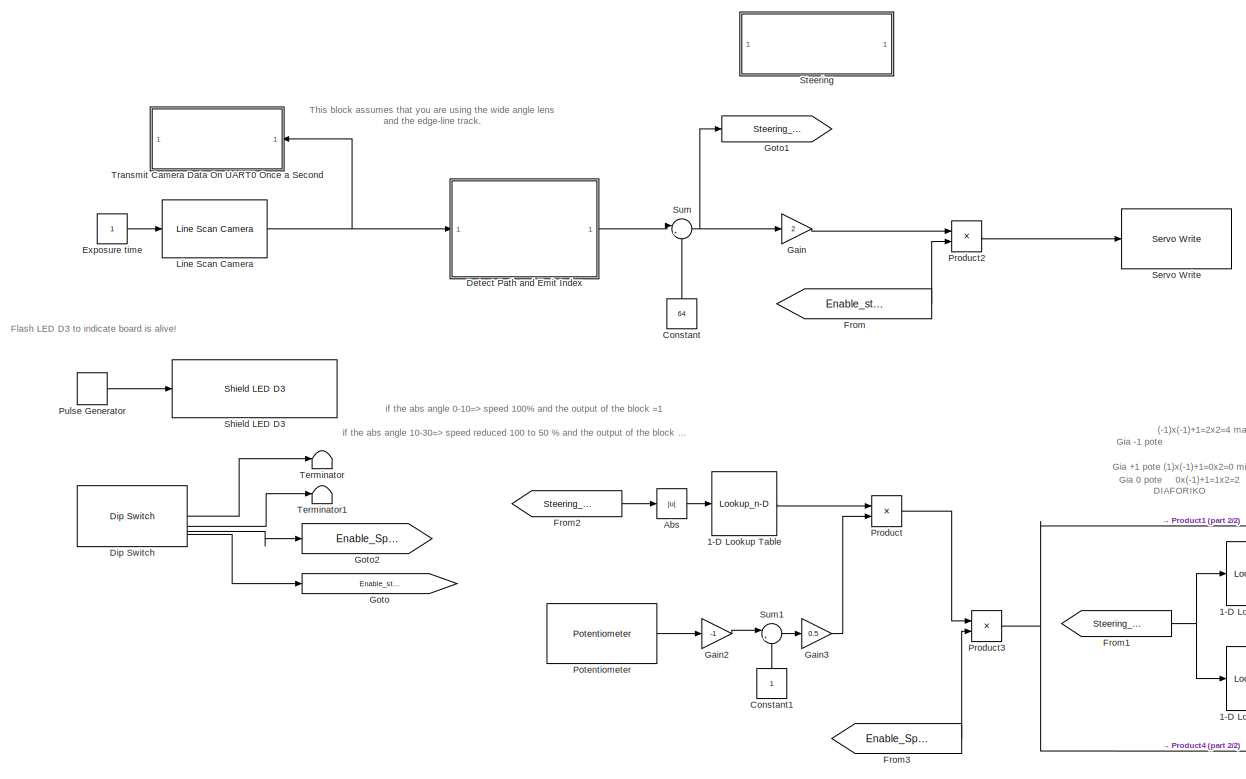
[diagram: root canvas - part 1/2, center side, full height]
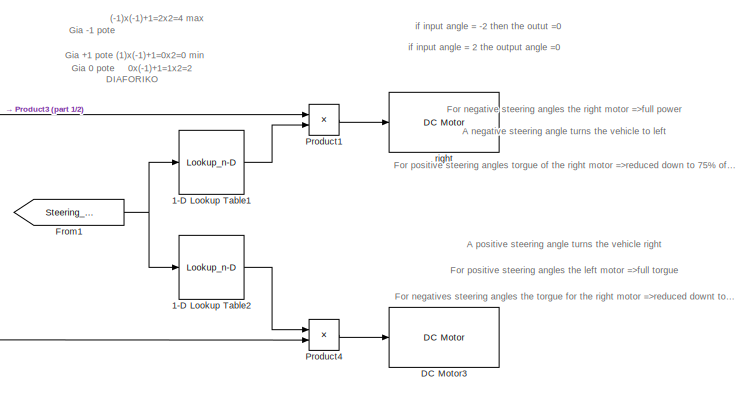
[diagram: root canvas - part 2/2, bottom right region]
MODEL slx_8026f4508d6a
KIND model
CONFIG AbsTol = auto
CONFIG EnableMultiTasking = on
CONFIG FixedStep = 0.02
CONFIG MaxStep = auto
CONFIG MinStep = auto
CONFIG RelTol = 1e-3
CONFIG SampleTimeConstraint = Unconstrained
CONFIG SolverName = FixedStepDiscrete
CONFIG StartTime = 0.0
CONFIG StopTime = 10.0
BLOCK [Lookup_n-D] 1-D Lookup Table
  BreakpointsForDimension1 = [0 10 20 60]
  ExtrapMethod = Clip
  InputPortMap = u0
  InternalRulePriority = Speed
  NumberOfTableDimensions = 1
  RndMeth = Simplest
  Table = [1.8 1 0.8 0.2]
  UseLastTableValue = on
BLOCK [Lookup_n-D] 1-D Lookup Table1
  BreakpointsForDimension1 = [ -70 0 10 20 30 35 40 50 60 70]
  ExtrapMethod = Clip
  InputPortMap = u0
  InternalRulePriority = Speed
  NumberOfTableDimensions = 1
  RndMeth = Simplest
  Table = [1 1  1 0.77 0.65 0.58 0.57 0.57 0.50 0.45 ]
  UseLastTableValue = on
BLOCK [Lookup_n-D] 1-D Lookup Table2
  BreakpointsForDimension1 = [ -70 -60 -50 -40 -35 -30 -20 -10 0 10 20 30 35 40 50 60 70]
  ExtrapMethod = Clip
  InputPortMap = u0
  InternalRulePriority = Speed
  NumberOfTableDimensions = 1
  RndMeth = Simplest
  Table = [0.45 0.5 0.57 0.57 0.58 0.65 0.77 1 1 1 1 1 1 1 1 1 1]
  UseLastTableValue = on
BLOCK [Abs] Abs
  SaturateOnIntegerOverflow = off
BLOCK [Constant] Constant
  NameLocation = right
  Value = 64
BLOCK [Constant] Constant1
  NameLocation = right
BLOCK [Reference] DC Motor3  REF=frdmtfcshieldlib/DC Motor
  SourceBlock = frdmtfcshieldlib/DC Motor
  SourceType = DC Motor
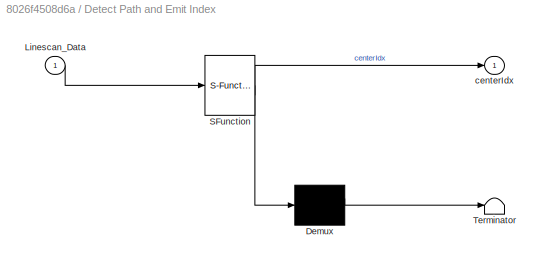
BLOCK [SubSystem] Detect Path and Emit Index
  ErrorFcn = Stateflow.Translate.translate
  PermitHierarchicalResolution = ExplicitOnly
  SFBlockType = MATLAB Function
  TreatAsAtomicUnit = on
BLOCK [Demux] Detect Path and Emit Index/ Demux 
  Outputs = 1
BLOCK [S-Function] Detect Path and Emit Index/ SFunction 
  EnableBusSupport = on
  FunctionName = sf_sfun
  PortCounts = [1 2]
  SFcnIsStateOwnerBlock = off
  SFunctionDeploymentMode = off
  Tag = Stateflow S-Function 2
BLOCK [Terminator] Detect Path and Emit Index/ Terminator 
BLOCK [Inport] Detect Path and Emit Index/Linescan_Data
BLOCK [Outport] Detect Path and Emit Index/centerIdx
BLOCK [Reference] Dip Switch  REF=frdmtfcshieldlib/Dip Switch
  SourceBlock = frdmtfcshieldlib/Dip Switch
  SourceType = Dip Switch
BLOCK [Constant] Exposure time
BLOCK [From] From
  GotoTag = Enable_steering
BLOCK [From] From1
  GotoTag = Steering_Angle
BLOCK [From] From2
  GotoTag = Steering_Angle
BLOCK [From] From3
  GotoTag = Enable_Speed
BLOCK [Gain] Gain
  Gain = 2
BLOCK [Gain] Gain2
  Gain = -1
BLOCK [Gain] Gain3
  Gain = 0.5
BLOCK [Goto] Goto
  GotoTag = Enable_steering
BLOCK [Goto] Goto1
  GotoTag = Steering_Angle
BLOCK [Goto] Goto2
  GotoTag = Enable_Speed
BLOCK [Reference] Line Scan Camera  REF=frdmtfcshieldlib/Line Scan Camera
  SourceBlock = frdmtfcshieldlib/Line Scan Camera
  SourceType = Line Scan Camera
BLOCK [Reference] Potentiometer  REF=frdmtfcshieldlib/Potentiometer
  SourceBlock = frdmtfcshieldlib/Potentiometer
  SourceType = Potentiometer
BLOCK [Product] Product
BLOCK [Product] Product1
BLOCK [Product] Product2
BLOCK [Product] Product3
BLOCK [Product] Product4
BLOCK [DiscretePulseGenerator] Pulse Generator
  Period = 10
  PulseType = Time based
  PulseWidth = 5
BLOCK [Reference] Servo Write  REF=frdmtfcshieldlib/Servo Write
  SourceBlock = frdmtfcshieldlib/Servo Write
  SourceType = Servo Write
BLOCK [Reference] Shield LED D3  REF=Autonomous_Vehicle_Competition/Shield LED D3
  SourceBlock = Autonomous_Vehicle_Competition/Shield LED D3
  SourceProductName = Autonomous Vehicle Competition
  SourceType = Shield LED D3
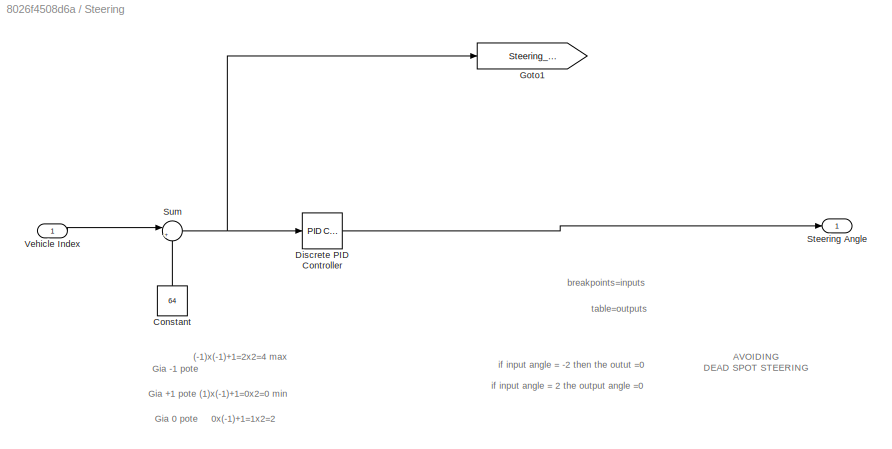
BLOCK [SubSystem] Steering
BLOCK [Constant] Steering/Constant
  NameLocation = right
  Value = 64
BLOCK [Reference] Steering/Discrete PID Controller  REF=slpidlib/PID Controller
  LibrarySourceBlock = simulink/Discrete/Discrete PID Controller
  SourceBlock = slpidlib/PID Controller
  SourceType = PID 1dof
BLOCK [Goto] Steering/Goto1
  GotoTag = Steering_Angle
BLOCK [Outport] Steering/Steering Angle
BLOCK [Sum] Steering/Sum
  Inputs = |+-
BLOCK [Inport] Steering/Vehicle Index
BLOCK [Sum] Sum
  Inputs = |+-
BLOCK [Sum] Sum1
  Inputs = |++
BLOCK [Terminator] Terminator
BLOCK [Terminator] Terminator1
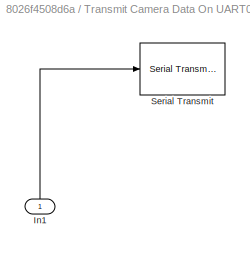
BLOCK [SubSystem] Transmit Camera Data On UART0 Once a Second
  SystemSampleTime = .26
  TreatAsAtomicUnit = on
BLOCK [Inport] Transmit Camera Data On UART0 Once a Second/In1
  NameLocation = right
BLOCK [Reference] Transmit Camera Data On UART0 Once a Second/Serial Transmit  REF=frdmkl25zlib/Serial Transmit
  SourceBlock = frdmkl25zlib/Serial Transmit
  SourceType = Serial Transmit
BLOCK [Reference] right  REF=frdmtfcshieldlib/DC Motor
  SourceBlock = frdmtfcshieldlib/DC Motor
  SourceType = DC Motor
ANNOTATION (root): (-1)x(-1)+1=2x2=4 max
ANNOTATION (root): (1)x(-1)+1=0x2=0 min
ANNOTATION (root): 0x(-1)+1=1x2=2
ANNOTATION (root): Flash LED D3 to indicate board is alive!
ANNOTATION (root): A negative steering angle turns the vehicle to left
ANNOTATION (root): A positive steering angle turns the vehicle right
ANNOTATION (root): DIAFORIKO
ANNOTATION (root): For negative steering angles the right motor =>full power
ANNOTATION (root): For negatives steering angles the torgue for the right motor =>reduced downt to 75% of the full torgue
ANNOTATION (root): For positive steering angles the left motor =>full torgue
ANNOTATION (root): For positive steering angles torgue of the right motor =>reduced down to 75% of the full torgue
ANNOTATION (root): Gia +1 pote
ANNOTATION (root): Gia -1 pote
ANNOTATION (root): Gia 0 pote
ANNOTATION (root): This block assumes that you are using the wide angle lens and the edge-line track.
ANNOTATION (root): if input angle = -2 then the outut =0
ANNOTATION (root): if input angle = 2 the output angle =0
ANNOTATION (root): if the abs angle 0-10=> speed 100% and the output of the block =1
ANNOTATION (root): if the abs angle 10-30=> speed reduced 100 to 50 % and the output of the block => 1 down ot 0.5
ANNOTATION Steering: AVOIDING DEAD SPOT STEERING
ANNOTATION Steering: (-1)x(-1)+1=2x2=4 max
ANNOTATION Steering: (1)x(-1)+1=0x2=0 min
ANNOTATION Steering: 0x(-1)+1=1x2=2
ANNOTATION Steering: Gia +1 pote
ANNOTATION Steering: Gia -1 pote
ANNOTATION Steering: Gia 0 pote
ANNOTATION Steering: breakpoints=inputs
ANNOTATION Steering: if input angle = -2 then the outut =0
ANNOTATION Steering: if input angle = 2 the output angle =0
ANNOTATION Steering: table=outputs
LINE 1-D Lookup Table1:1 -> Product1:2
LINE 1-D Lookup Table2:1 -> Product4:1
LINE 1-D Lookup Table:1 -> Product:1
LINE Abs:1 -> 1-D Lookup Table:1
LINE Constant1:1 -> Sum1:2
LINE Constant:1 -> Sum:2
LINE Detect Path and Emit Index:1 -> Sum:1
LINE Dip Switch:1 -> Terminator:1
LINE Dip Switch:2 -> Terminator1:1
LINE Dip Switch:3 -> Goto2:1
LINE Dip Switch:4 -> Goto:1
LINE Exposure time:1 -> Line Scan Camera:1
NET From1:1 -> 1-D Lookup Table1:1, 1-D Lookup Table2:1
LINE From2:1 -> Abs:1
LINE From3:1 -> Product3:2
LINE From:1 -> Product2:2
LINE Gain2:1 -> Sum1:1
LINE Gain3:1 -> Product:2
LINE Gain:1 -> Product2:1
NET Line Scan Camera:1 -> Detect Path and Emit Index:1, Transmit Camera Data On UART0 Once a Second:1
LINE Potentiometer:1 -> Gain2:1
LINE Product1:1 -> right:1
LINE Product2:1 -> Servo Write:1
NET Product3:1 -> Product1:1, Product4:2
LINE Product4:1 -> DC Motor3:1
LINE Product:1 -> Product3:1
LINE Pulse Generator:1 -> Shield LED D3:1
LINE Steering/Constant:1 -> Steering/Sum:2
LINE Steering/Discrete PID Controller:1 -> Steering/Steering Angle:1
NET Steering/Sum:1 -> Steering/Discrete PID Controller:1, Steering/Goto1:1
LINE Steering/Vehicle Index:1 -> Steering/Sum:1
LINE Sum1:1 -> Gain3:1
NET Sum:1 -> Gain:1, Goto1:1
LINE Transmit Camera Data On UART0 Once a Second/In1:1 -> Transmit Camera Data On UART0 Once a Second/Serial Transmit:1
note: NET lines group one-source signal fan-out (src -> all destinations, sorted); 1:1 wires keep LINE
CHART Detect Path and Emit Index states=1 transitions=1
  STATE_LABEL 'eML_blk_kernel()'
  STATE_LABEL 'SCRIPT:\nfunction centerIdx = CenterIdx(Linescan_Data)\n% function centerIdx = CenterIdx(Linescan_Data)\n% This function finds the current position of the track\'s\n% center. \n\n%%---------------------------------------------------------------------------------------------\n% The lines below are also inside  file "Full_High_School_Model_0_View_Camera.m"\n% This m-file will display the camera data and also...<+1103ch>'
CHART  states=0 transitions=0
